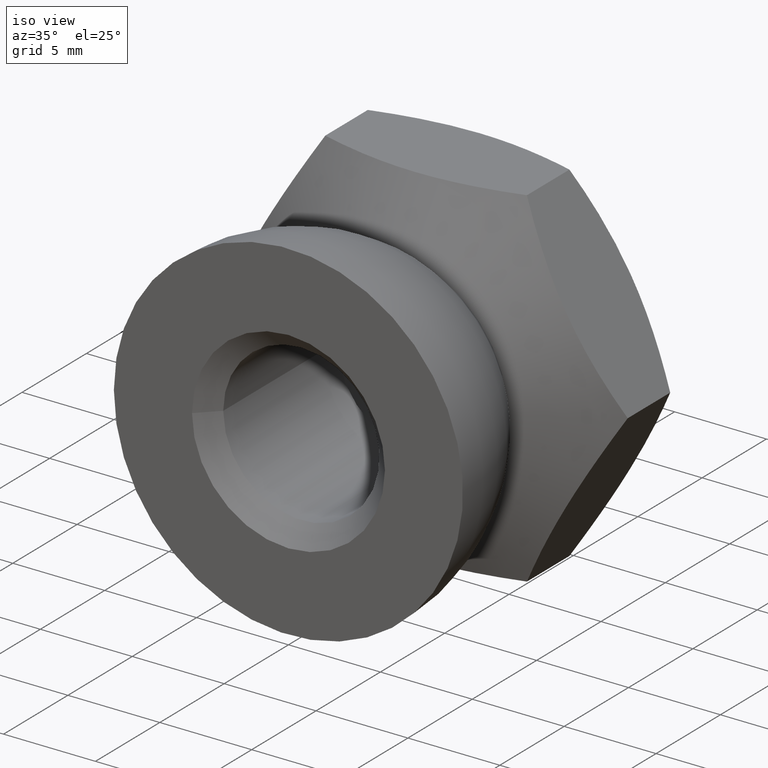
[diagram: clean part render]
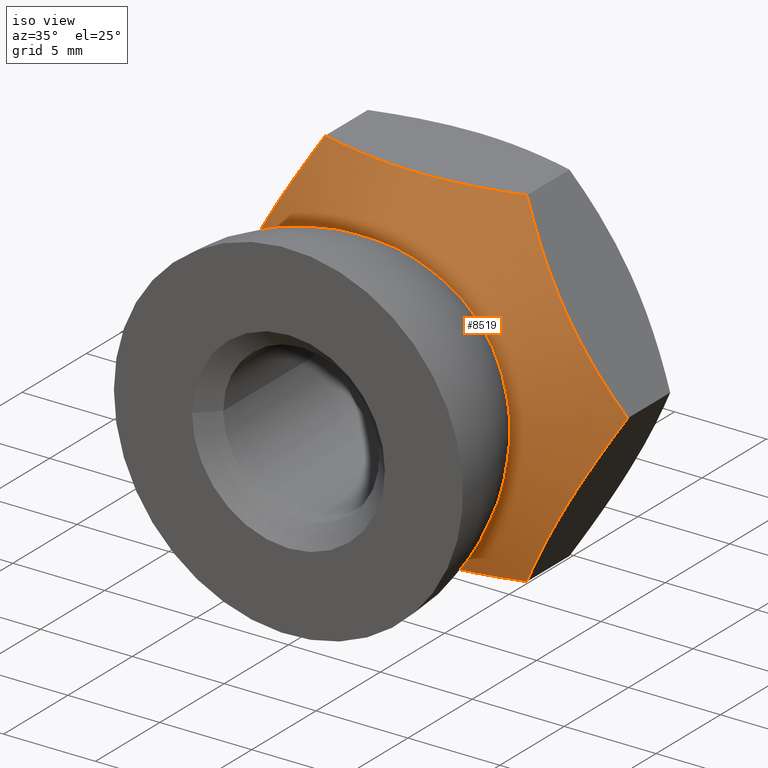
[diagram: same view with one face highlighted and labeled with its STEP entity id]
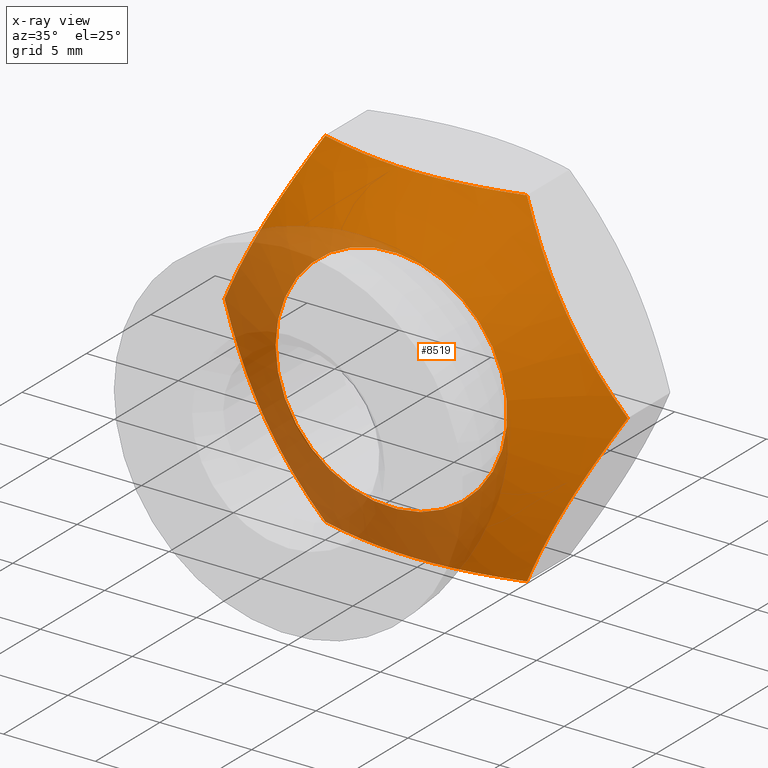
[diagram: x-ray of the same camera — body ghosted, the highlighted face saturated]
A machine part, iso view. The second image highlights one B-rep face of the part: STEP entity #8519.
The next image is the same camera in x-ray: the body ghosted, the highlighted face saturated — about 31% of this face is hidden behind the body in this view.
In plain terms, the highlighted conical surface has half-angle 60 deg.
Its self-contained STEP definition (entity closure, byte-faithful):
#156 = CARTESIAN_POINT ( 'NONE',  ( 3.699995783309918629, 10.22692695252593964, 9.499999999999998224 ) ) ;
#176 = CARTESIAN_POINT ( 'NONE',  ( 9.159317603281262876, 9.929247328426416885, 3.135596548456853760 ) ) ;
#207 = CARTESIAN_POINT ( 'NONE',  ( 0.4652160249855945007, 9.847567485916863816, 9.500000000000001776 ) ) ;
#295 = CARTESIAN_POINT ( 'NONE',  ( 7.295165068623073346, 9.929247328426416885, -6.364403451543142687 ) ) ;
#296 = CARTESIAN_POINT ( 'NONE',  ( -10.07082218433748189, 10.22442421521328981, -1.556824302735693388 ) ) ;
#347 = CARTESIAN_POINT ( 'NONE',  ( 8.689407995052491174, 9.867060090753371426, -3.949503864873876502 ) ) ;
#349 = CARTESIAN_POINT ( 'NONE',  ( -6.385259740977873300, 10.22357460661727124, -7.940405709102233089 ) ) ;
#691 = CARTESIAN_POINT ( 'NONE',  ( -5.484827557301461098, 10.69602663743865456, 9.499999999999996447 ) ) ;
#1175 = AXIS2_PLACEMENT_3D ( 'NONE', #6608, #4531, #14212 ) ;
#1327 = CARTESIAN_POINT ( 'NONE',  ( 5.933169854870390836, 10.43717609124793277, 8.723448361428426168 ) ) ;
#1502 = CARTESIAN_POINT ( 'NONE',  ( 7.755690760383302518, 9.848118250283819819, -5.566749555223620582 ) ) ;
#1503 = CARTESIAN_POINT ( 'NONE',  ( -7.999326808949354550, 9.847227174036726538, -5.144759540551892663 ) ) ;
#1521 = CARTESIAN_POINT ( 'NONE',  ( 8.698791911521034592, 9.848118250283819819, 3.933250444776376309 ) ) ;
#1646 = B_SPLINE_CURVE_WITH_KNOTS ( 'NONE', 3,
 ( #2713, #14682, #9994, #295, #1502, #14828, #347, #11116, #1866, #4041, #3953, #5137 ),
 .UNSPECIFIED., .F., .F.,
 ( 4, 2, 2, 2, 2, 4 ),
 ( 2.380730689801188687E-07, 0.002769924230077196441, 0.005539610387085412702, 0.006924453465589521482, 0.008309296544093630263, 0.01107898270110184956 ),
 .UNSPECIFIED. ) ;
#1647 = CONICAL_SURFACE ( 'NONE', #1175, 6.299999999999998046, 1.047197551196602738 ) ;
#1648 = CARTESIAN_POINT ( 'NONE',  ( -7.071565071364194210, 10.00182448864975804, -6.751690007367774804 ) ) ;
#1866 = CARTESIAN_POINT ( 'NONE',  ( 9.382917600540137570, 10.00182448864976159, -2.748309992632230525 ) ) ;
#2029 = CARTESIAN_POINT ( 'NONE',  ( -6.299999999999998046, 8.000000000000000000, 0.000000000000000000 ) ) ;
#2464 = CARTESIAN_POINT ( 'NONE',  ( 4.598224822297212633, 10.44008647357918029, -9.500000000000000000 ) ) ;
#2631 = CARTESIAN_POINT ( 'NONE',  ( -1.846595367396668408, 9.927052982286236116, 9.499999999999998224 ) ) ;
#2643 = CARTESIAN_POINT ( 'NONE',  ( 7.765074676851846824, 9.867060090753374979, 5.550496135126122610 ) ) ;
#2713 = CARTESIAN_POINT ( 'NONE',  ( 5.484827557301454881, 10.69602663743865456, -9.500000000000000000 ) ) ;
#2854 = CARTESIAN_POINT ( 'NONE',  ( -5.484827557301437118, 10.69602663743865456, -9.500000000000012434 ) ) ;
#3006 = CARTESIAN_POINT ( 'NONE',  ( -5.932611665630004083, 10.43749836195594050, 8.724415173553005332 ) ) ;
#3289 = EDGE_LOOP ( 'NONE', ( #5631 ) ) ;
#3568 = AXIS2_PLACEMENT_3D ( 'NONE', #13418, #9645, #3680 ) ;
#3621 = EDGE_CURVE ( 'NONE', #13966, #13966, #8158, .T. ) ;
#3680 = DIRECTION ( 'NONE',  ( -1.000000000000000000, 0.000000000000000000, 0.000000000000000000 ) ) ;
#3791 = CARTESIAN_POINT ( 'NONE',  ( 0.4652160249856114871, 9.847567485916863816, -9.500000000000003553 ) ) ;
#3865 = VERTEX_POINT ( 'NONE', #691 ) ;
#3953 = CARTESIAN_POINT ( 'NONE',  ( 10.52131281703394450, 10.43717609124793277, -0.7765516385715780512 ) ) ;
#4024 = ORIENTED_EDGE ( 'NONE', *, *, #11299, .T. ) ;
#4041 = CARTESIAN_POINT ( 'NONE',  ( 10.06922293092645404, 10.22357460661726947, -1.559594290897773794 ) ) ;
#4172 = CARTESIAN_POINT ( 'NONE',  ( -10.06922293092646115, 10.22357460661727124, 1.559594290897760471 ) ) ;
#4531 = DIRECTION ( 'NONE',  ( -4.592425496802571754E-17, 1.000000000000000000, -0.000000000000000000 ) ) ;
#4983 = CARTESIAN_POINT ( 'NONE',  ( 3.699995783309930175, 10.22692695252594675, -9.500000000000001776 ) ) ;
#4992 = CARTESIAN_POINT ( 'NONE',  ( 1.863291688997197326, 9.945668202817424586, 9.500000000000001776 ) ) ;
#5137 = CARTESIAN_POINT ( 'NONE',  ( 10.96965511460289733, 10.69602663743865456, -8.673617379884035472E-16 ) ) ;
#5247 = CARTESIAN_POINT ( 'NONE',  ( -7.765074676851837054, 9.867060090753374979, -5.550496135126128827 ) ) ;
#5277 = CARTESIAN_POINT ( 'NONE',  ( -9.152783415666281286, 9.944397991385390156, 3.146914093392179534 ) ) ;
#5295 = CARTESIAN_POINT ( 'NONE',  ( -4.592499788182087705, 10.43843379858539322, 9.499999999999998224 ) ) ;
#5323 = CARTESIAN_POINT ( 'NONE',  ( -10.96965511460289733, 10.69602663743865456, -1.821459649775647449E-14 ) ) ;
#5371 = CARTESIAN_POINT ( 'NONE',  ( -7.295165068623074234, 9.929247328426416885, 6.364403451543132917 ) ) ;
#5431 = CARTESIAN_POINT ( 'NONE',  ( -5.484827557301461098, 10.69602663743865456, 9.499999999999996447 ) ) ;
#5495 = B_SPLINE_CURVE_WITH_KNOTS ( 'NONE', 3,
 ( #8667, #14632, #13425, #11017, #12117, #3791, #6193, #9848, #8614, #4983, #2464, #8512 ),
 .UNSPECIFIED., .F., .F.,
 ( 4, 2, 2, 2, 2, 4 ),
 ( 0.009785653152898844687, 0.01256082388966139711, 0.01533599462642394953, 0.01672357999480522661, 0.01811116536318650022, 0.02088633609994905785 ),
 .UNSPECIFIED. ) ;
#5631 = ORIENTED_EDGE ( 'NONE', *, *, #3621, .T. ) ;
#6171 = CARTESIAN_POINT ( 'NONE',  ( 5.484827557301444223, 10.69602663743865456, 9.500000000000008882 ) ) ;
#6193 = CARTESIAN_POINT ( 'NONE',  ( 0.9302644592718569694, 9.867308404329452998, -9.500000000000001776 ) ) ;
#6316 = CARTESIAN_POINT ( 'NONE',  ( 6.385259740977877740, 10.22357460661727124, 7.940405709102231313 ) ) ;
#6363 = CARTESIAN_POINT ( 'NONE',  ( -5.484827557301437118, 10.69602663743865456, -9.500000000000012434 ) ) ;
#6608 = CARTESIAN_POINT ( 'NONE',  ( -3.673940397442057403E-16, 8.000000000000000000, 0.000000000000000000 ) ) ;
#6679 = CARTESIAN_POINT ( 'NONE',  ( -7.755690760383305182, 9.848118250283816266, 5.566749555223610813 ) ) ;
#7054 = CARTESIAN_POINT ( 'NONE',  ( -10.96965511460289733, 10.69602663743865456, -1.821459649775647449E-14 ) ) ;
#7224 = CARTESIAN_POINT ( 'NONE',  ( 10.52187100627433480, 10.43749836195594405, 0.7755848264469832332 ) ) ;
#7433 = EDGE_CURVE ( 'NONE', #8387, #11961, #1646, .T. ) ;
#7545 = CARTESIAN_POINT ( 'NONE',  ( -10.52187100627432237, 10.43749836195593517, -0.7755848264469927811 ) ) ;
#7645 = CARTESIAN_POINT ( 'NONE',  ( -10.96965511460289733, 10.69602663743865456, -1.821459649775647449E-14 ) ) ;
#7832 = CARTESIAN_POINT ( 'NONE',  ( -9.382917600540134018, 10.00182448864976159, 2.748309992632217202 ) ) ;
#7899 = B_SPLINE_CURVE_WITH_KNOTS ( 'NONE', 3,
 ( #12234, #13346, #156, #8577, #4992, #14591, #207, #9808, #2631, #13490, #5295, #8718 ),
 .UNSPECIFIED., .F., .F.,
 ( 4, 2, 2, 2, 2, 4 ),
 ( 0.004020521562028762930, 0.006788597473713393546, 0.008172635429555707987, 0.009556673385398024162, 0.01232474929708265478, 0.01509282520876728539 ),
 .UNSPECIFIED. ) ;
#7940 = VERTEX_POINT ( 'NONE', #14769 ) ;
#8142 = EDGE_CURVE ( 'NONE', #11961, #7940, #8904, .T. ) ;
#8158 = CIRCLE ( 'NONE', #3568, 6.299999999999998046 ) ;
#8387 = VERTEX_POINT ( 'NONE', #11694 ) ;
#8404 = ORIENTED_EDGE ( 'NONE', *, *, #12932, .T. ) ;
#8512 = CARTESIAN_POINT ( 'NONE',  ( 5.484827557301454881, 10.69602663743865456, -9.500000000000000000 ) ) ;
#8519 = ADVANCED_FACE ( 'NONE', ( #9371, #14443 ), #1647, .T. ) ;
#8577 = CARTESIAN_POINT ( 'NONE',  ( 2.326374647208432123, 10.00387976360412523, 9.500000000000001776 ) ) ;
#8582 = ORIENTED_EDGE ( 'NONE', *, *, #8142, .T. ) ;
#8614 = CARTESIAN_POINT ( 'NONE',  ( 2.326374647208445889, 10.00387976360413234, -9.500000000000001776 ) ) ;
#8667 = CARTESIAN_POINT ( 'NONE',  ( -5.484827557301437118, 10.69602663743865456, -9.500000000000012434 ) ) ;
#8712 = CARTESIAN_POINT ( 'NONE',  ( -8.698791911521025710, 9.848118250283814490, -3.933250444776382526 ) ) ;
#8718 = CARTESIAN_POINT ( 'NONE',  ( -5.484827557301461098, 10.69602663743865456, 9.499999999999996447 ) ) ;
#8811 = CARTESIAN_POINT ( 'NONE',  ( -9.159317603281252218, 9.929247328426415109, -3.135596548456862198 ) ) ;
#8886 = CARTESIAN_POINT ( 'NONE',  ( -8.689407995052492950, 9.867060090753371426, 3.949503864873865400 ) ) ;
#8904 = B_SPLINE_CURVE_WITH_KNOTS ( 'NONE', 3,
 ( #14401, #7224, #14704, #176, #1521, #13509, #2643, #9730, #13454, #6316, #1327, #6171 ),
 .UNSPECIFIED., .F., .F.,
 ( 4, 2, 2, 2, 2, 4 ),
 ( 2.380730689701819282E-07, 0.002769924230077190370, 0.005539610387085410100, 0.006924453465589519748, 0.008309296544093631998, 0.01107898270110185129 ),
 .UNSPECIFIED. ) ;
#9043 = CARTESIAN_POINT ( 'NONE',  ( -10.52131281703395160, 10.43717609124794166, 0.7765516385715626191 ) ) ;
#9306 = EDGE_CURVE ( 'NONE', #7940, #3865, #7899, .T. ) ;
#9371 = FACE_OUTER_BOUND ( 'NONE', #9459, .T. ) ;
#9404 = CARTESIAN_POINT ( 'NONE',  ( 10.96965511460289733, 10.69602663743865456, -8.673617379884035472E-16 ) ) ;
#9459 = EDGE_LOOP ( 'NONE', ( #4024, #14663, #8582, #13488, #13968, #8404 ) ) ;
#9645 = DIRECTION ( 'NONE',  ( -4.592425496802571754E-17, 1.000000000000000000, -0.000000000000000000 ) ) ;
#9730 = CARTESIAN_POINT ( 'NONE',  ( 7.301699256238057600, 9.944397991385393709, 6.353085906607806699 ) ) ;
#9808 = CARTESIAN_POINT ( 'NONE',  ( -0.9254759860079452283, 9.847427861179683717, 9.500000000000001776 ) ) ;
#9848 = CARTESIAN_POINT ( 'NONE',  ( 1.863291688997213758, 9.945668202817428138, -9.500000000000001776 ) ) ;
#9994 = CARTESIAN_POINT ( 'NONE',  ( 6.383660487566849007, 10.22442421521329337, -7.943175697264310386 ) ) ;
#10031 = CARTESIAN_POINT ( 'NONE',  ( -8.455155862954978119, 9.847227174036726538, 4.355240459448099344 ) ) ;
#10962 = B_SPLINE_CURVE_WITH_KNOTS ( 'NONE', 3,
 ( #5431, #3006, #12612, #5371, #6679, #10031, #8886, #5277, #7832, #4172, #9043, #5323 ),
 .UNSPECIFIED., .F., .F.,
 ( 4, 2, 2, 2, 2, 4 ),
 ( 2.380730689865437989E-07, 0.002769924230077207283, 0.005539610387085425712, 0.006924453465589535360, 0.008309296544093645875, 0.01107898270110186691 ),
 .UNSPECIFIED. ) ;
#11017 = CARTESIAN_POINT ( 'NONE',  ( -1.846595367396651088, 9.927052982286232563, -9.500000000000001776 ) ) ;
#11116 = CARTESIAN_POINT ( 'NONE',  ( 9.152783415666281286, 9.944397991385391933, -3.146914093392193301 ) ) ;
#11118 = CARTESIAN_POINT ( 'NONE',  ( -7.301699256238046054, 9.944397991385393709, -6.353085906607813804 ) ) ;
#11299 = EDGE_CURVE ( 'NONE', #15029, #8387, #5495, .T. ) ;
#11694 = CARTESIAN_POINT ( 'NONE',  ( 5.484827557301454881, 10.69602663743865456, -9.500000000000000000 ) ) ;
#11961 = VERTEX_POINT ( 'NONE', #9404 ) ;
#11979 = VERTEX_POINT ( 'NONE', #7054 ) ;
#12117 = CARTESIAN_POINT ( 'NONE',  ( -0.9254759860079292411, 9.847427861179687270, -9.500000000000003553 ) ) ;
#12234 = CARTESIAN_POINT ( 'NONE',  ( 5.484827557301444223, 10.69602663743865456, 9.500000000000008882 ) ) ;
#12330 = CARTESIAN_POINT ( 'NONE',  ( -5.933169854870383730, 10.43717609124793100, -8.723448361428427944 ) ) ;
#12612 = CARTESIAN_POINT ( 'NONE',  ( -6.383660487566844566, 10.22442421521328981, 7.943175697264302393 ) ) ;
#12932 = EDGE_CURVE ( 'NONE', #11979, #15029, #13160, .T. ) ;
#13160 = B_SPLINE_CURVE_WITH_KNOTS ( 'NONE', 3,
 ( #7645, #7545, #296, #8811, #8712, #1503, #5247, #11118, #1648, #349, #12330, #2854 ),
 .UNSPECIFIED., .F., .F.,
 ( 4, 2, 2, 2, 2, 4 ),
 ( 2.380730689848797233E-07, 0.002769924230077203380, 0.005539610387085421375, 0.006924453465589531023, 0.008309296544093638937, 0.01107898270110185823 ),
 .UNSPECIFIED. ) ;
#13346 = CARTESIAN_POINT ( 'NONE',  ( 4.598224822297201086, 10.44008647357917319, 9.499999999999998224 ) ) ;
#13418 = CARTESIAN_POINT ( 'NONE',  ( -3.673940397442057403E-16, 8.000000000000000000, 0.000000000000000000 ) ) ;
#13425 = CARTESIAN_POINT ( 'NONE',  ( -3.678576453157652359, 10.22239483675843807, -9.500000000000000000 ) ) ;
#13454 = CARTESIAN_POINT ( 'NONE',  ( 7.071565071364200428, 10.00182448864976159, 6.751690007367771251 ) ) ;
#13488 = ORIENTED_EDGE ( 'NONE', *, *, #9306, .T. ) ;
#13490 = CARTESIAN_POINT ( 'NONE',  ( -3.678576453157674120, 10.22239483675844163, 9.500000000000000000 ) ) ;
#13509 = CARTESIAN_POINT ( 'NONE',  ( 7.999326808949365208, 9.847227174036730091, 5.144759540551885557 ) ) ;
#13966 = VERTEX_POINT ( 'NONE', #2029 ) ;
#13968 = ORIENTED_EDGE ( 'NONE', *, *, #14577, .T. ) ;
#14212 = DIRECTION ( 'NONE',  ( -1.000000000000000000, 0.000000000000000000, 0.000000000000000000 ) ) ;
#14401 = CARTESIAN_POINT ( 'NONE',  ( 10.96965511460289733, 10.69602663743865456, -8.673617379884035472E-16 ) ) ;
#14443 = FACE_BOUND ( 'NONE', #3289, .T. ) ;
#14577 = EDGE_CURVE ( 'NONE', #3865, #11979, #10962, .T. ) ;
#14591 = CARTESIAN_POINT ( 'NONE',  ( 0.9302644592718423144, 9.867308404329451221, 9.500000000000001776 ) ) ;
#14632 = CARTESIAN_POINT ( 'NONE',  ( -4.592499788182069054, 10.43843379858539144, -9.500000000000005329 ) ) ;
#14663 = ORIENTED_EDGE ( 'NONE', *, *, #7433, .T. ) ;
#14682 = CARTESIAN_POINT ( 'NONE',  ( 5.932611665630004971, 10.43749836195594405, -8.724415173553010661 ) ) ;
#14704 = CARTESIAN_POINT ( 'NONE',  ( 10.07082218433749432, 10.22442421521329869, 1.556824302735684062 ) ) ;
#14769 = CARTESIAN_POINT ( 'NONE',  ( 5.484827557301444223, 10.69602663743865456, 9.500000000000008882 ) ) ;
#14828 = CARTESIAN_POINT ( 'NONE',  ( 8.455155862954974566, 9.847227174036731867, -4.355240459448110890 ) ) ;
#15029 = VERTEX_POINT ( 'NONE', #6363 ) ;